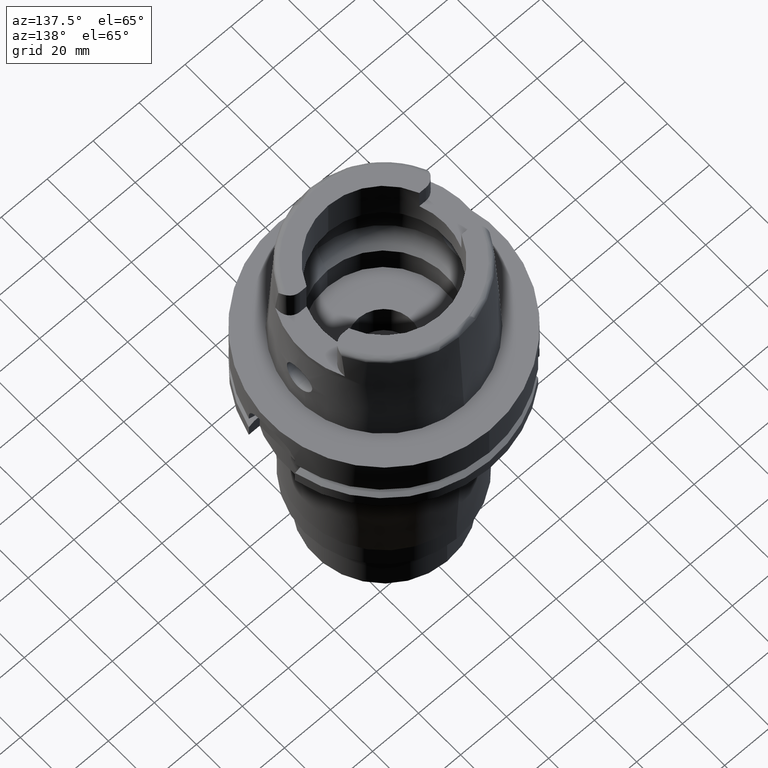
[diagram: clean part render]
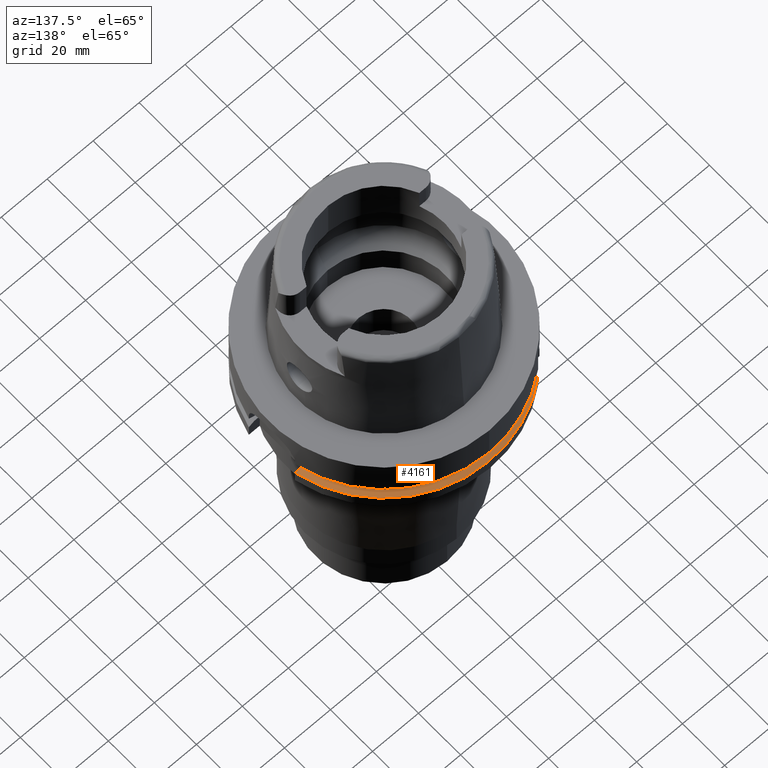
[diagram: same view with one face highlighted and labeled with its STEP entity id]
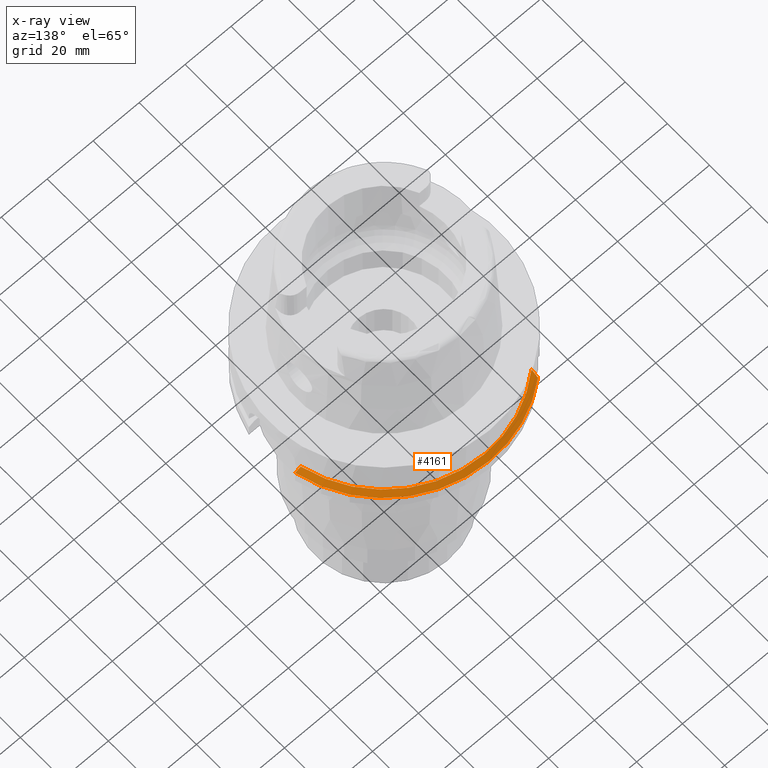
[diagram: x-ray of the same camera — body ghosted, the highlighted face saturated]
A machine part, auxiliary view. The second image highlights one B-rep face of the part: STEP entity #4161.
The next image is the same camera in x-ray: the body ghosted, the highlighted face saturated — about 0% of this face is hidden behind the body in this view.
In plain terms, the highlighted conical surface has half-angle 60 deg.
Its self-contained STEP definition (entity closure, byte-faithful):
#1427=CARTESIAN_POINT('',(-3.149999917464E1,3.882975730027E1,
-2.324759226296E1));
#1428=CARTESIAN_POINT('',(-3.149999917464E1,3.848478757091E1,
-2.309291907127E1));
#1429=CARTESIAN_POINT('',(-3.149999990389E1,3.779426517852E1,
-2.278487524109E1));
#1430=CARTESIAN_POINT('',(-3.150000157441E1,3.675645002128E1,
-2.232739939093E1));
#1431=CARTESIAN_POINT('',(-3.149999639044E1,3.606333280873E1,
-2.202520793280E1));
#1432=CARTESIAN_POINT('',(-3.149999639044E1,3.571643728013E1,-2.1875E1));
#1799=CARTESIAN_POINT('',(0.E0,0.E0,-2.1875E1));
#1800=DIRECTION('',(0.E0,0.E0,-1.E0));
#1801=DIRECTION('',(-6.614507215588E-1,7.499886285467E-1,0.E0));
#1802=AXIS2_PLACEMENT_3D('',#1799,#1800,#1801);
#1807=CARTESIAN_POINT('',(0.E0,0.E0,-2.1875E1));
#1808=DIRECTION('',(0.E0,0.E0,-1.E0));
#1809=DIRECTION('',(0.E0,1.E0,0.E0));
#1810=AXIS2_PLACEMENT_3D('',#1807,#1808,#1809);
#1831=CARTESIAN_POINT('',(0.E0,0.E0,-2.324759526419E1));
#1832=DIRECTION('',(0.E0,0.E0,-1.E0));
#1833=DIRECTION('',(-6.3E-1,7.765951326142E-1,0.E0));
#1834=AXIS2_PLACEMENT_3D('',#1831,#1832,#1833);
#1839=CARTESIAN_POINT('',(0.E0,0.E0,-2.324759526419E1));
#1840=DIRECTION('',(0.E0,0.E0,-1.E0));
#1841=DIRECTION('',(0.E0,1.E0,0.E0));
#1842=AXIS2_PLACEMENT_3D('',#1839,#1840,#1841);
#1847=CARTESIAN_POINT('',(4.877499359303E1,1.1E1,-2.324759526419E1));
#1848=CARTESIAN_POINT('',(4.850399904748E1,1.1E1,-2.309496975038E1));
#1849=CARTESIAN_POINT('',(4.796191616323E1,1.1E1,-2.278979543230E1));
#1850=CARTESIAN_POINT('',(4.714851446810E1,1.1E1,-2.233225649733E1));
#1851=CARTESIAN_POINT('',(4.660605711265E1,1.1E1,-2.202738808211E1));
#1852=CARTESIAN_POINT('',(4.633477721644E1,1.1E1,-2.1875E1));
#2618=CARTESIAN_POINT('',(-3.149999917464E1,3.882975730027E1,
-2.324759226296E1));
#2619=VERTEX_POINT('',#2618);
#2620=VERTEX_POINT('',#1432);
#2638=CARTESIAN_POINT('',(4.877499359303E1,1.1E1,-2.324759526419E1));
#2639=VERTEX_POINT('',#2638);
#2640=CARTESIAN_POINT('',(-1.065814103640E-14,5.E1,-2.324759526419E1));
#2641=VERTEX_POINT('',#2640);
#2677=VERTEX_POINT('',#1852);
#2678=CARTESIAN_POINT('',(-1.598721155460E-14,4.762259526419E1,-2.1875E1));
#2679=VERTEX_POINT('',#2678);
#4148=CARTESIAN_POINT('',(0.E0,0.E0,-2.256129763210E1));
#4149=DIRECTION('',(0.E0,0.E0,-1.E0));
#4150=DIRECTION('',(0.E0,-1.E0,0.E0));
#4151=AXIS2_PLACEMENT_3D('',#4148,#4149,#4150);
#4152=CONICAL_SURFACE('',#4151,4.881129763209E1,6.E1);
#4153=ORIENTED_EDGE('',*,*,#3814,.F.);
#4154=ORIENTED_EDGE('',*,*,#3845,.T.);
#4155=ORIENTED_EDGE('',*,*,#3843,.T.);
#4156=ORIENTED_EDGE('',*,*,#3870,.T.);
#4157=ORIENTED_EDGE('',*,*,#4140,.F.);
#4158=ORIENTED_EDGE('',*,*,#4138,.F.);
#4159=EDGE_LOOP('',(#4153,#4154,#4155,#4156,#4157,#4158));
#4160=FACE_OUTER_BOUND('',#4159,.F.);
#1433=B_SPLINE_CURVE_WITH_KNOTS('',3,(#1427,#1428,#1429,#1430,#1431,#1432),
.UNSPECIFIED.,.F.,.F.,(4,1,1,4),(0.E0,3.333333333333E-1,6.666666666667E-1,1.E0),
.UNSPECIFIED.);
#1803=CIRCLE('',#1802,4.762259526419E1);
#1811=CIRCLE('',#1810,4.762259526419E1);
#1835=CIRCLE('',#1834,5.E1);
#1843=CIRCLE('',#1842,5.E1);
#1853=B_SPLINE_CURVE_WITH_KNOTS('',3,(#1847,#1848,#1849,#1850,#1851,#1852),
.UNSPECIFIED.,.F.,.F.,(4,1,1,4),(0.E0,3.333333333333E-1,6.666666666667E-1,1.E0),
.UNSPECIFIED.);
#3814=EDGE_CURVE('',#2619,#2620,#1433,.T.);
#3843=EDGE_CURVE('',#2641,#2639,#1843,.T.);
#3845=EDGE_CURVE('',#2619,#2641,#1835,.T.);
#3870=EDGE_CURVE('',#2639,#2677,#1853,.T.);
#4138=EDGE_CURVE('',#2620,#2679,#1803,.T.);
#4140=EDGE_CURVE('',#2679,#2677,#1811,.T.);
#4161=ADVANCED_FACE('',(#4160),#4152,.T.);